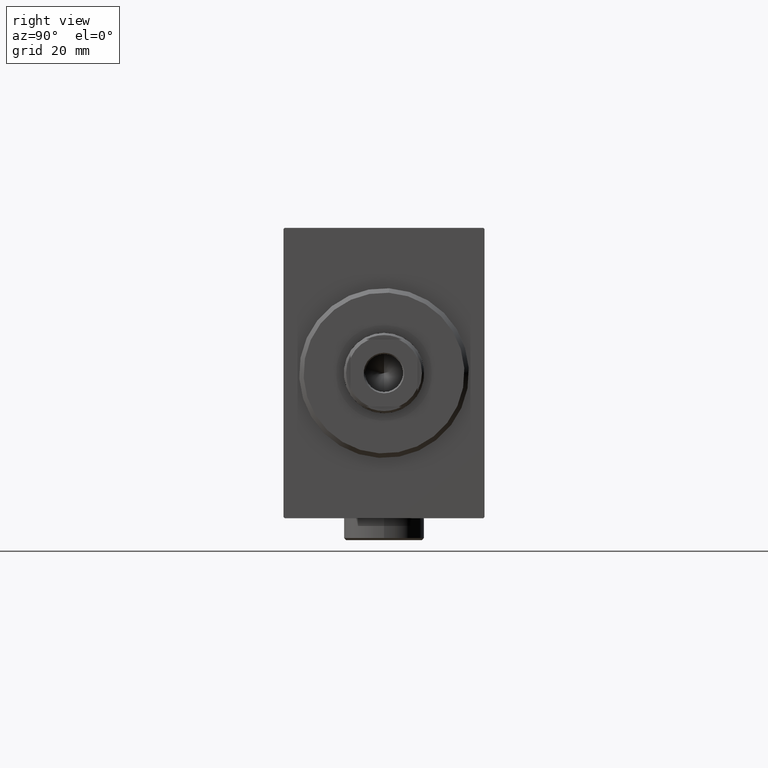
[diagram: clean part render]
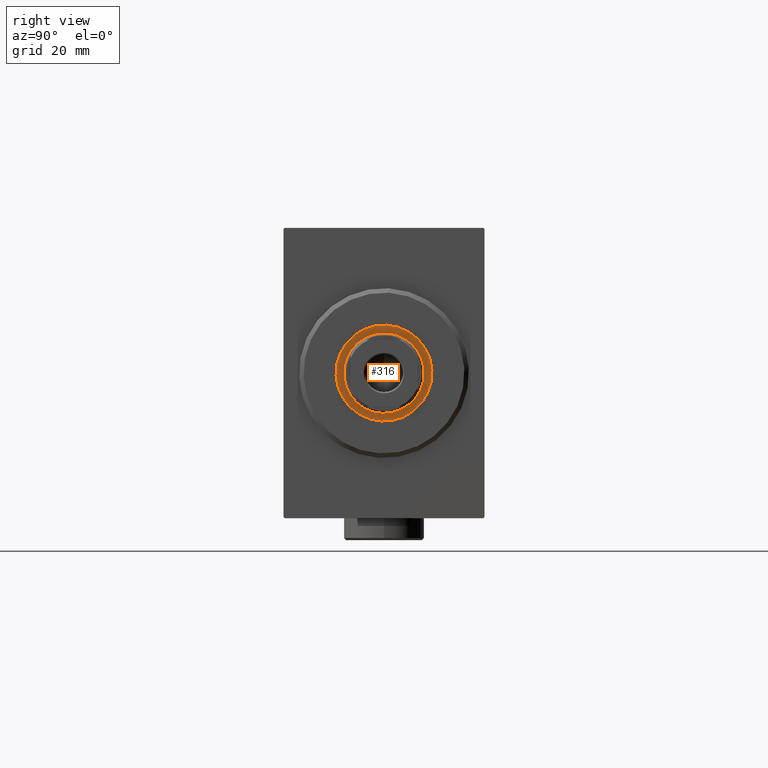
[diagram: same view with one face highlighted and labeled with its STEP entity id]
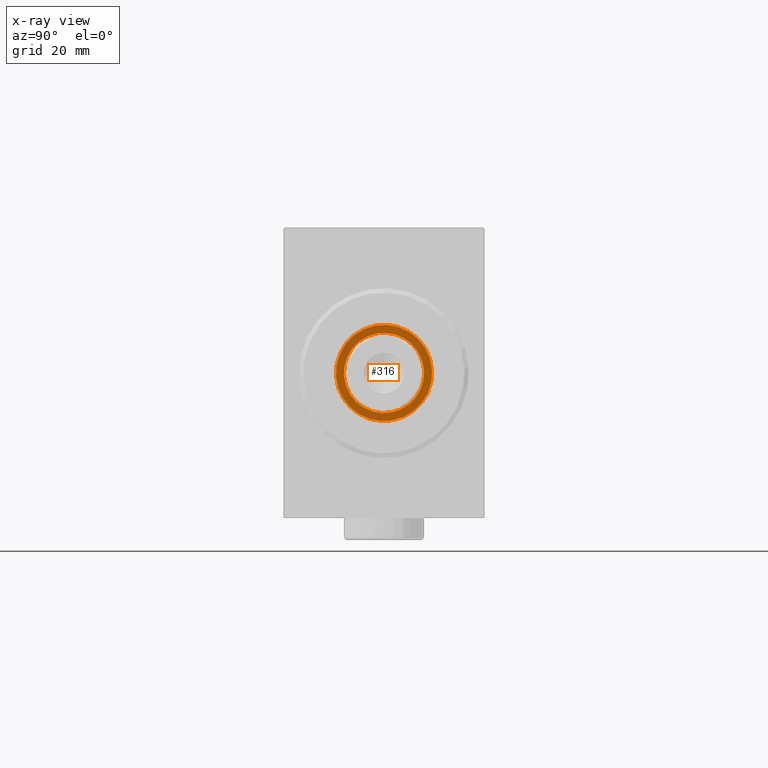
[diagram: x-ray of the same camera — body ghosted, the highlighted face saturated]
A machine part, right view. The second image highlights one B-rep face of the part: STEP entity #316.
The next image is the same camera in x-ray: the body ghosted, the highlighted face saturated — about 0% of this face is hidden behind the body in this view.
In plain terms, the highlighted planar face has unit normal (1, -0, -0).
Its self-contained STEP definition (entity closure, byte-faithful):
#316 = ADVANCED_FACE ( 'NONE', ( #12200, #5240 ), #1858, .T. ) ;
#1771 = ORIENTED_EDGE ( 'NONE', *, *, #11582, .F. ) ;
#1858 = PLANE ( 'NONE',  #25800 ) ;
#2705 = CARTESIAN_POINT ( 'NONE',  ( 2.500000000000000000, 0.000000000000000000, 0.000000000000000000 ) ) ;
#3401 = CARTESIAN_POINT ( 'NONE',  ( 2.500000000000000000, 0.000000000000000000, -10.75000000000000000 ) ) ;
#5138 = ORIENTED_EDGE ( 'NONE', *, *, #40630, .T. ) ;
#5240 = FACE_OUTER_BOUND ( 'NONE', #11602, .T. ) ;
#6377 = DIRECTION ( 'NONE',  ( 0.000000000000000000, 0.000000000000000000, -1.000000000000000000 ) ) ;
#6883 = CARTESIAN_POINT ( 'NONE',  ( 2.500000000000000444, 0.000000000000000000, -9.000000000000000000 ) ) ;
#7335 = CIRCLE ( 'NONE', #32503, 9.000000000000000000 ) ;
#8229 = CARTESIAN_POINT ( 'NONE',  ( 2.500000000000000444, 1.102182119232617714E-15, 9.000000000000000000 ) ) ;
#8852 = DIRECTION ( 'NONE',  ( 0.000000000000000000, 0.000000000000000000, -1.000000000000000000 ) ) ;
#11003 = CIRCLE ( 'NONE', #13144, 10.75000000000000000 ) ;
#11582 = EDGE_CURVE ( 'NONE', #18667, #36001, #7335, .T. ) ;
#11602 = EDGE_LOOP ( 'NONE', ( #28188, #5138 ) ) ;
#12200 = FACE_BOUND ( 'NONE', #24711, .T. ) ;
#12420 = DIRECTION ( 'NONE',  ( 1.000000000000000000, 0.000000000000000000, 0.000000000000000000 ) ) ;
#13144 = AXIS2_PLACEMENT_3D ( 'NONE', #2705, #36713, #20025 ) ;
#18667 = VERTEX_POINT ( 'NONE', #8229 ) ;
#20002 = CARTESIAN_POINT ( 'NONE',  ( 2.500000000000000000, 0.000000000000000000, 0.000000000000000000 ) ) ;
#20025 = DIRECTION ( 'NONE',  ( 0.000000000000000000, 0.000000000000000000, -1.000000000000000000 ) ) ;
#24711 = EDGE_LOOP ( 'NONE', ( #30114, #1771 ) ) ;
#25800 = AXIS2_PLACEMENT_3D ( 'NONE', #28875, #12420, #43054 ) ;
#28188 = ORIENTED_EDGE ( 'NONE', *, *, #43441, .T. ) ;
#28875 = CARTESIAN_POINT ( 'NONE',  ( 2.500000000000000000, 0.000000000000000000, 0.000000000000000000 ) ) ;
#29259 = DIRECTION ( 'NONE',  ( 1.000000000000000000, 0.000000000000000000, 0.000000000000000000 ) ) ;
#29369 = CIRCLE ( 'NONE', #39448, 9.000000000000000000 ) ;
#29799 = DIRECTION ( 'NONE',  ( 1.000000000000000000, 0.000000000000000000, 0.000000000000000000 ) ) ;
#30114 = ORIENTED_EDGE ( 'NONE', *, *, #34816, .F. ) ;
#32503 = AXIS2_PLACEMENT_3D ( 'NONE', #32967, #29799, #6377 ) ;
#32744 = CARTESIAN_POINT ( 'NONE',  ( 2.500000000000000444, 0.000000000000000000, 0.000000000000000000 ) ) ;
#32967 = CARTESIAN_POINT ( 'NONE',  ( 2.500000000000000444, 0.000000000000000000, 0.000000000000000000 ) ) ;
#34816 = EDGE_CURVE ( 'NONE', #36001, #18667, #29369, .T. ) ;
#36001 = VERTEX_POINT ( 'NONE', #6883 ) ;
#36713 = DIRECTION ( 'NONE',  ( 1.000000000000000000, 0.000000000000000000, 0.000000000000000000 ) ) ;
#39448 = AXIS2_PLACEMENT_3D ( 'NONE', #32744, #43086, #8852 ) ;
#39700 = VERTEX_POINT ( 'NONE', #3401 ) ;
#40425 = CARTESIAN_POINT ( 'NONE',  ( 2.500000000000000000, 1.316495309083404618E-15, 10.75000000000000000 ) ) ;
#40630 = EDGE_CURVE ( 'NONE', #42134, #39700, #11003, .T. ) ;
#41249 = AXIS2_PLACEMENT_3D ( 'NONE', #20002, #29259, #43867 ) ;
#42134 = VERTEX_POINT ( 'NONE', #40425 ) ;
#43054 = DIRECTION ( 'NONE',  ( 0.000000000000000000, 0.000000000000000000, -1.000000000000000000 ) ) ;
#43086 = DIRECTION ( 'NONE',  ( 1.000000000000000000, 0.000000000000000000, 0.000000000000000000 ) ) ;
#43441 = EDGE_CURVE ( 'NONE', #39700, #42134, #44138, .T. ) ;
#43867 = DIRECTION ( 'NONE',  ( 0.000000000000000000, 0.000000000000000000, -1.000000000000000000 ) ) ;
#44138 = CIRCLE ( 'NONE', #41249, 10.75000000000000000 ) ;